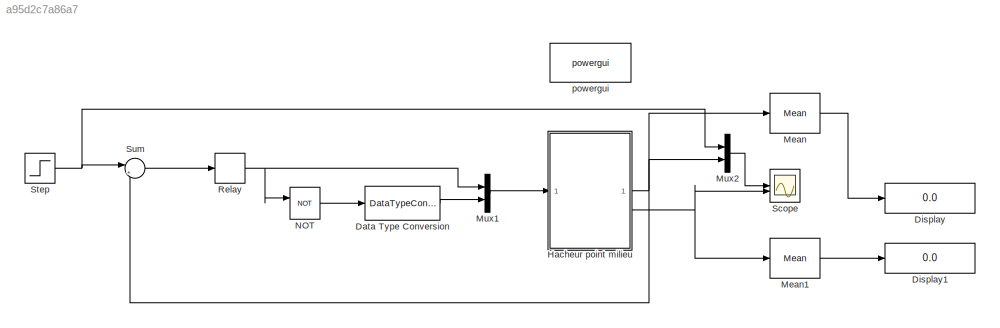
MODEL slx_a95d2c7a86a7
KIND model
CONFIG AbsTol = auto
CONFIG EnableMultiTasking = off
CONFIG FixedStep = auto
CONFIG MaxStep = 1e-3
CONFIG MinStep = auto
CONFIG RelTol = 1e-4
CONFIG SampleTimeConstraint = Unconstrained
CONFIG SolverName = ode45
CONFIG StartTime = 0.0
CONFIG StopTime = 0.5
BLOCK [DataTypeConversion] Data Type Conversion
  OutDataTypeStr = double
  RndMeth = Floor
  SaturateOnIntegerOverflow = off
BLOCK [Display] Display
  Decimation = 1
BLOCK [Display] Display1
  Decimation = 1
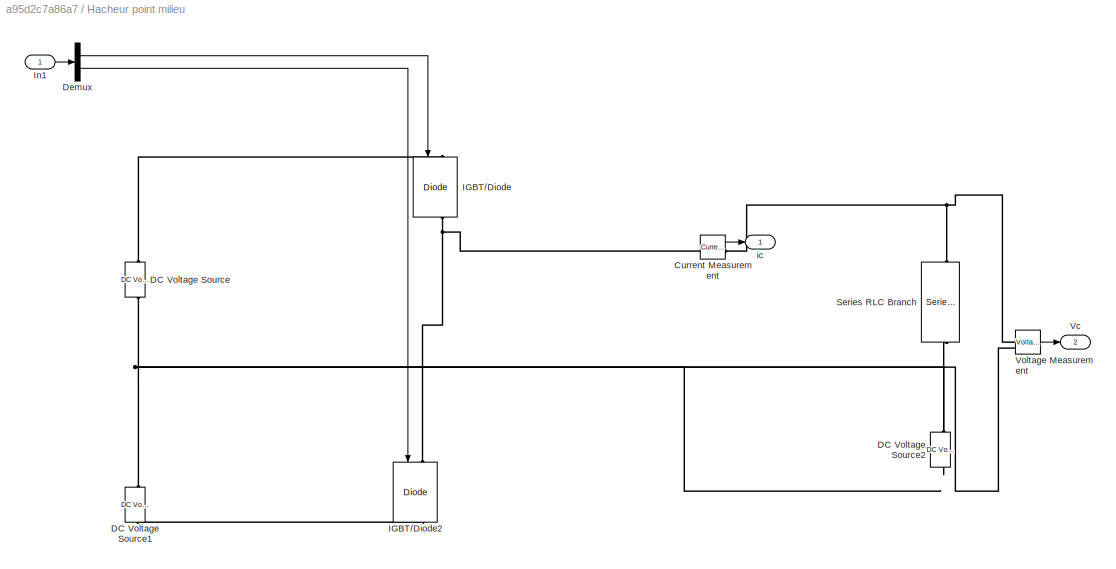
BLOCK [SubSystem] Hacheur point milieu
BLOCK [Reference] Hacheur point milieu/Current Measurement  REF=spsCurrentMeasurementLib/Current Measurement
  LibrarySourceBlock = sps_lib/Sensors and Measurements/Current Measurement
  SourceBlock = spsCurrentMeasurementLib/Current Measurement
  SourceType = Current Measurement
  UserDataPersistent = on
BLOCK [Reference] Hacheur point milieu/DC Voltage Source  REF=spsDCVoltageSourceLib/DC Voltage Source
  LibrarySourceBlock = sps_lib/Sources/DC Voltage Source
  SourceBlock = spsDCVoltageSourceLib/DC Voltage Source
  SourceType = DC Voltage Source
BLOCK [Reference] Hacheur point milieu/DC Voltage Source1  REF=spsDCVoltageSourceLib/DC Voltage Source
  LibrarySourceBlock = sps_lib/Sources/DC Voltage Source
  SourceBlock = spsDCVoltageSourceLib/DC Voltage Source
  SourceType = DC Voltage Source
BLOCK [Reference] Hacheur point milieu/DC Voltage Source2  REF=spsDCVoltageSourceLib/DC Voltage Source
  LibrarySourceBlock = sps_lib/Sources/DC Voltage Source
  SourceBlock = spsDCVoltageSourceLib/DC Voltage Source
  SourceType = DC Voltage Source
BLOCK [Demux] Hacheur point milieu/Demux
  Outputs = 2
BLOCK [Reference] Hacheur point milieu/IGBT//Diode  REF=spsIGBTDiodeLib/IGBT//Diode
  LibrarySourceBlock = sps_lib/Power Electronics/IGBT//Diode
  NameLocation = left
  SourceBlock = spsIGBTDiodeLib/IGBT//Diode
  SourceType = IGBT/Diode
BLOCK [Reference] Hacheur point milieu/IGBT//Diode2  REF=spsIGBTDiodeLib/IGBT//Diode
  LibrarySourceBlock = sps_lib/Power Electronics/IGBT//Diode
  NameLocation = left
  SourceBlock = spsIGBTDiodeLib/IGBT//Diode
  SourceType = IGBT/Diode
BLOCK [Inport] Hacheur point milieu/In1
BLOCK [Reference] Hacheur point milieu/Series RLC Branch  REF=spsSeriesRLCBranchLib/Series RLC Branch
  LibrarySourceBlock = sps_lib/Passives/Series RLC Branch
  NameLocation = left
  SourceBlock = spsSeriesRLCBranchLib/Series RLC Branch
  SourceType = Series RLC Branch
BLOCK [Outport] Hacheur point milieu/Vc
  Port = 2
BLOCK [Reference] Hacheur point milieu/Voltage Measurement  REF=spsVoltageMeasurementLib/Voltage Measurement
  LibrarySourceBlock = sps_lib/Sensors and Measurements/Voltage Measurement
  SourceBlock = spsVoltageMeasurementLib/Voltage Measurement
  SourceType = Voltage Measurement
  UserDataPersistent = on
BLOCK [Outport] Hacheur point milieu/ic
BLOCK [Reference] Mean  REF=spsMeanLib/Mean
  LibrarySourceBlock = sps_lib/Sensors and Measurements/Mean
  SourceBlock = spsMeanLib/Mean
  SourceType = Mean
BLOCK [Reference] Mean1  REF=spsMeanLib/Mean
  LibrarySourceBlock = sps_lib/Sensors and Measurements/Mean
  SourceBlock = spsMeanLib/Mean
  SourceType = Mean
BLOCK [Mux] Mux1
  DisplayOption = bar
  Inputs = 2
BLOCK [Mux] Mux2
  DisplayOption = bar
  Inputs = 2
BLOCK [Logic] NOT
  AllPortsSameDT = off
  IconShape = distinctive
  Operator = NOT
  OutDataTypeStr = boolean
BLOCK [Relay] Relay
  OffSwitchValue = -0.1
  OnSwitchValue = 0.1
BLOCK [Scope] Scope
  Floating = off
  NumInputPorts = 2
  ScopeSpecificationString = Simulink.scopes.TimeScopeBlockCfg('CurrentConfiguration', extmgr.ConfigurationSet(extmgr.Configuration('Core','General UI',true),extmgr.Configuration('Core','Source UI',true),extmgr.Configuration('Sources','WiredSimulink',true),extmgr.Configuration('Visuals','Time Domain',true,'SerializedDisplays',{struct('MinYLimReal','3.48274','MaxYLimReal','4.2777','YLabelReal','','MinYLimMag','3.48274','MaxYLi...<+2208ch>
BLOCK [Step] Step
  After = 4
  Before = 2
  SampleTime = 0
  Time = 0.25
BLOCK [Sum] Sum
  Inputs = |+-
BLOCK [Reference] powergui  REF=sps_lib/powergui
  LibrarySourceBlock = sps_lib/powergui
  Priority = 1
  SourceBlock = sps_lib/powergui
  SourceType = PSB option menu block
LINE Data Type Conversion:1 -> Mux1:2
LINE Hacheur point milieu/Current Measurement:1 -> Hacheur point milieu/ic:1
LINE Hacheur point milieu/Demux:1 -> Hacheur point milieu/IGBT//Diode:1
LINE Hacheur point milieu/Demux:2 -> Hacheur point milieu/IGBT//Diode2:1
LINE Hacheur point milieu/In1:1 -> Hacheur point milieu/Demux:1
LINE Hacheur point milieu/Voltage Measurement:1 -> Hacheur point milieu/Vc:1
NET Hacheur point milieu:1 -> Mean:1, Mux2:2, Sum:2
NET Hacheur point milieu:2 -> Mean1:1, Scope:2
LINE Mean1:1 -> Display1:1
LINE Mean:1 -> Display:1
LINE Mux1:1 -> Hacheur point milieu:1
LINE Mux2:1 -> Scope:1
LINE NOT:1 -> Data Type Conversion:1
NET Relay:1 -> Mux1:1, NOT:1
NET Step:1 -> Mux2:1, Sum:1
LINE Sum:1 -> Relay:1
PNET net1: Hacheur point milieu/Current Measurement:LConn1 -- Hacheur point milieu/IGBT//Diode2:LConn1 -- Hacheur point milieu/IGBT//Diode:RConn1
PNET net2: Hacheur point milieu/Current Measurement:RConn1 -- Hacheur point milieu/Series RLC Branch:LConn1 -- Hacheur point milieu/Voltage Measurement:LConn1
PLINE Hacheur point milieu/DC Voltage Source1:LConn1 -- Hacheur point milieu/IGBT//Diode2:RConn1
PNET net3: Hacheur point milieu/DC Voltage Source1:RConn1 -- Hacheur point milieu/DC Voltage Source2:LConn1 -- Hacheur point milieu/DC Voltage Source:LConn1 -- Hacheur point milieu/Voltage Measurement:LConn2
PLINE Hacheur point milieu/DC Voltage Source2:RConn1 -- Hacheur point milieu/Series RLC Branch:RConn1
PLINE Hacheur point milieu/DC Voltage Source:RConn1 -- Hacheur point milieu/IGBT//Diode:LConn1
note: NET lines group one-source signal fan-out (src -> all destinations, sorted); 1:1 wires keep LINE; PNET lines group multi-terminal physical nets as a canonical sorted terminal list (undirected conserving connections); 2-terminal nets keep the pairwise PLINE form
